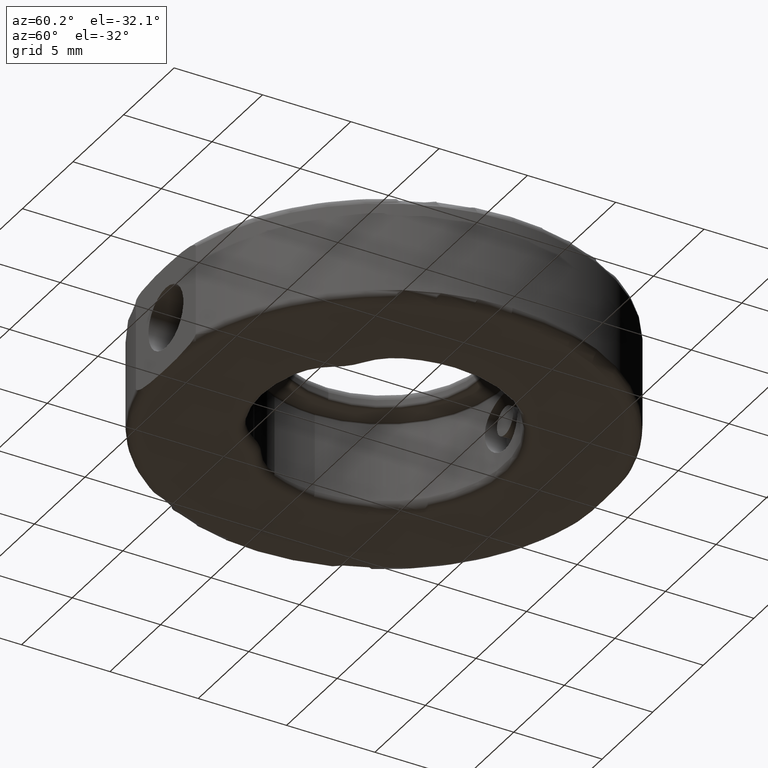
[diagram: clean part render]
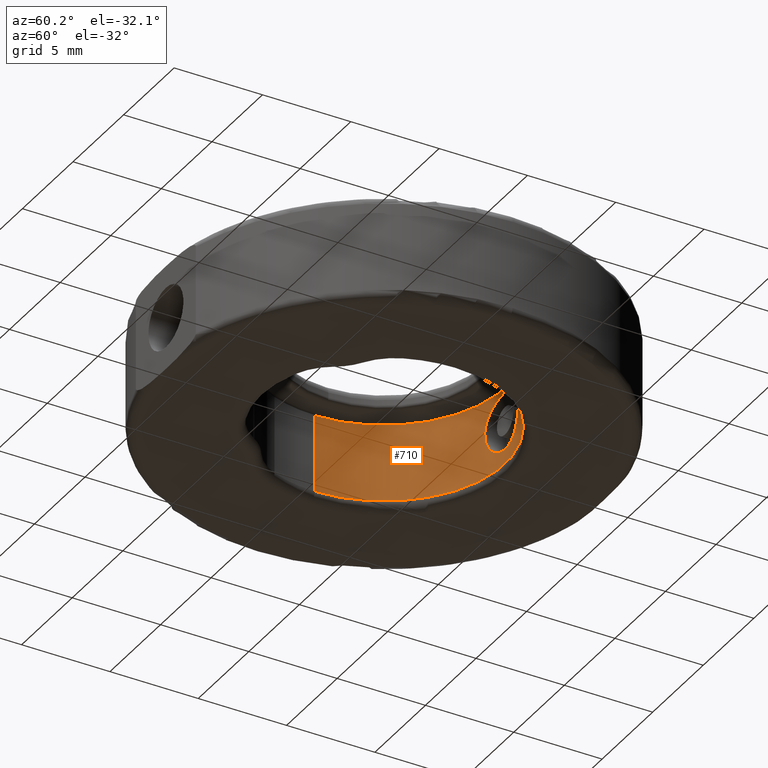
[diagram: same view with one face highlighted and labeled with its STEP entity id]
A machine part, auxiliary view. The second image highlights one B-rep face of the part: STEP entity #710.
In plain terms, the highlighted cylindrical surface (partial cylindrical patch) has radius 6.85 mm, axis along (0, 0, -1).
Its self-contained STEP definition (entity closure, byte-faithful):
#19 = CARTESIAN_POINT ( 'NONE',  ( 6.719217618061335900, 1.275128223901953700, 1.899999999999997700 ) ) ;
#30 = CARTESIAN_POINT ( 'NONE',  ( -1.780692854094324300, 7.923458498666678700, 0.2168156272716826300 ) ) ;
#37 = CARTESIAN_POINT ( 'NONE',  ( -0.6642640029042814500, 8.105058576943044100, 1.565114838639644700 ) ) ;
#46 = CARTESIAN_POINT ( 'NONE',  ( -0.3482485759951011700, 8.122501187562210800, -1.639189690561572200 ) ) ;
#105 = CARTESIAN_POINT ( 'NONE',  ( -0.1307823819386641500, 1.275128223901953000, 1.899999999999997700 ) ) ;
#148 = CARTESIAN_POINT ( 'NONE',  ( -0.1307823819386639600, 8.125128223901953100, -1.649999999999994400 ) ) ;
#177 = DIRECTION ( 'NONE',  ( 1.000000000000000000, 0.0000000000000000000, 0.0000000000000000000 ) ) ;
#195 = EDGE_LOOP ( 'NONE', ( #1958, #2221 ) ) ;
#198 = CARTESIAN_POINT ( 'NONE',  ( -0.8639172233832684800, 8.086520487717045600, 1.482126985888219600 ) ) ;
#209 = CARTESIAN_POINT ( 'NONE',  ( 1.300176239652689500, 7.974274695459972600, -0.8284685667323760100 ) ) ;
#215 = CARTESIAN_POINT ( 'NONE',  ( -1.450272680572304100, 7.998635503419884600, -1.014021106373245600 ) ) ;
#218 = CARTESIAN_POINT ( 'NONE',  ( 1.466540893084672400, 7.936323862542264100, 0.4274556187418180300 ) ) ;
#224 = CARTESIAN_POINT ( 'NONE',  ( -1.137900766765117800, 8.051286043661143300, -1.311386853988991200 ) ) ;
#225 = VERTEX_POINT ( 'NONE', #875 ) ;
#227 = CARTESIAN_POINT ( 'NONE',  ( 0.08651430868236031900, 8.122508546657456900, 1.639220707423793900 ) ) ;
#245 = VERTEX_POINT ( 'NONE', #148 ) ;
#258 = VECTOR ( 'NONE', #1351, 1000.000000000000000 ) ;
#263 = CARTESIAN_POINT ( 'NONE',  ( -0.1307823819386641500, 8.125128223901953100, 1.649999999999992100 ) ) ;
#376 = CARTESIAN_POINT ( 'NONE',  ( -0.9594995347416583900, 8.075409844540114800, -1.430821722829468000 ) ) ;
#379 = CARTESIAN_POINT ( 'NONE',  ( 1.434556746270073900, 7.944011732359609100, 0.5327520053468096700 ) ) ;
#386 = CARTESIAN_POINT ( 'NONE',  ( -1.736970852478477000, 7.934692898172254000, 0.4345169366471000000 ) ) ;
#389 = CARTESIAN_POINT ( 'NONE',  ( 0.4042525322406190800, 8.104928904327323400, 1.564544976635929000 ) ) ;
#406 = CYLINDRICAL_SURFACE ( 'NONE', #1022, 6.850000000000000500 ) ;
#494 = FACE_BOUND ( 'NONE', #195, .T. ) ;
#513 = CARTESIAN_POINT ( 'NONE',  ( -0.1307823819386641500, 1.275128223901953000, -2.500000000000002700 ) ) ;
#561 = CARTESIAN_POINT ( 'NONE',  ( 1.180886698383069900, 7.998648897464490500, -1.006740764297424700 ) ) ;
#565 = CARTESIAN_POINT ( 'NONE',  ( -0.1307823819386641500, 8.125128223901953100, 1.649999999999992100 ) ) ;
#570 = CARTESIAN_POINT ( 'NONE',  ( 1.519255579808591800, 7.923426857863196600, 0.1082731544470719700 ) ) ;
#575 = CARTESIAN_POINT ( 'NONE',  ( -1.727659911210033500, 7.936431145975434200, -0.4291394288536624600 ) ) ;
#579 = CARTESIAN_POINT ( 'NONE',  ( -0.1307823819386639600, 8.125128223901953100, -1.649999999999994400 ) ) ;
#599 = CIRCLE ( 'NONE', #2346, 6.850000000000000500 ) ;
#619 = ORIENTED_EDGE ( 'NONE', *, *, #1142, .T. ) ;
#629 = CARTESIAN_POINT ( 'NONE',  ( -6.980782381938664300, 1.275128223901953000, -2.500000000000002700 ) ) ;
#633 = CIRCLE ( 'NONE', #1729, 6.850000000000000500 ) ;
#710 = ADVANCED_FACE ( 'NONE', ( #787, #494 ), #406, .F. ) ;
#743 = ORIENTED_EDGE ( 'NONE', *, *, #1878, .F. ) ;
#745 = CARTESIAN_POINT ( 'NONE',  ( 0.3028572000758655800, 8.114300780439027200, -1.606468063380612500 ) ) ;
#763 = CARTESIAN_POINT ( 'NONE',  ( 1.310680403859236100, 7.972281378778936800, 0.8313423958689858400 ) ) ;
#773 = CARTESIAN_POINT ( 'NONE',  ( 0.8765576780155588400, 8.051258162119536300, -1.311253189869128900 ) ) ;
#787 = FACE_OUTER_BOUND ( 'NONE', #824, .T. ) ;
#824 = EDGE_LOOP ( 'NONE', ( #743, #1174, #1084, #619 ) ) ;
#875 = CARTESIAN_POINT ( 'NONE',  ( 6.719217618061335900, 1.275128223901953700, -2.500000000000002700 ) ) ;
#927 = DIRECTION ( 'NONE',  ( 1.000000000000000000, 0.0000000000000000000, 0.0000000000000000000 ) ) ;
#952 = CARTESIAN_POINT ( 'NONE',  ( -1.572172994108417700, 7.972294502025321500, 0.8312878408091302100 ) ) ;
#958 = CARTESIAN_POINT ( 'NONE',  ( -0.2402352803849097900, 8.125128223901954900, 1.649999999999991900 ) ) ;
#966 = CARTESIAN_POINT ( 'NONE',  ( -1.222067880094366300, 8.038079541526100200, 1.242211108203061400 ) ) ;
#980 = DIRECTION ( 'NONE',  ( -1.000000000000000000, 0.0000000000000000000, 0.0000000000000000000 ) ) ;
#1022 = AXIS2_PLACEMENT_3D ( 'NONE', #1287, #1115, #980 ) ;
#1084 = ORIENTED_EDGE ( 'NONE', *, *, #2145, .T. ) ;
#1099 = DIRECTION ( 'NONE',  ( 0.0000000000000000000, 0.0000000000000000000, -1.000000000000000000 ) ) ;
#1115 = DIRECTION ( 'NONE',  ( 0.0000000000000000000, 0.0000000000000000000, -1.000000000000000000 ) ) ;
#1132 = CARTESIAN_POINT ( 'NONE',  ( -0.2387023365415995300, 8.125128223901956700, -1.649999999999994800 ) ) ;
#1135 = CARTESIAN_POINT ( 'NONE',  ( -0.02135880998334083500, 8.125128223901953100, 1.649999999999991700 ) ) ;
#1142 = EDGE_CURVE ( 'NONE', #2316, #225, #633, .T. ) ;
#1143 = CARTESIAN_POINT ( 'NONE',  ( 1.508626695495148800, 7.926091075850505900, 0.2156335496921648900 ) ) ;
#1148 = CARTESIAN_POINT ( 'NONE',  ( -0.5592342603691566900, 8.112535046256473600, 1.597044717059997500 ) ) ;
#1174 = ORIENTED_EDGE ( 'NONE', *, *, #2238, .T. ) ;
#1175 = CARTESIAN_POINT ( 'NONE',  ( 6.719217618061335900, 1.275128223901953700, 1.999999999999997800 ) ) ;
#1208 = B_SPLINE_CURVE_WITH_KNOTS ( 'NONE', 3,
 ( #579, #1882, #745, #1310, #2247, #773, #2242, #1294, #561, #209, #1322, #1877, #1675, #570, #1143, #218, #379, #763, #1506, #2060, #1858, #389, #1682, #227, #1135, #2068 ),
 .UNSPECIFIED., .F., .F.,
 ( 4, 2, 2, 2, 2, 2, 2, 2, 2, 2, 2, 2, 4 ),
 ( 0.005177749343865259800, 0.005824794597962986700, 0.006148317225011849800, 0.006471839852060713700, 0.006795362479109577600, 0.007118885106158440700, 0.007765930360256167700, 0.008089452987305029800, 0.008412975614353893800, 0.009060020868451621600, 0.009707066122549347700, 0.01003058874959821000, 0.01035411137664707400 ),
 .UNSPECIFIED. ) ;
#1229 = EDGE_CURVE ( 'NONE', #245, #2287, #1208, .T. ) ;
#1237 = DIRECTION ( 'NONE',  ( -0.0000000000000000000, 0.0000000000000000000, 1.000000000000000000 ) ) ;
#1283 = VERTEX_POINT ( 'NONE', #19 ) ;
#1287 = CARTESIAN_POINT ( 'NONE',  ( -0.1307823819386641500, 1.275128223901953000, 1.999999999999997800 ) ) ;
#1294 = CARTESIAN_POINT ( 'NONE',  ( 1.111522529611789900, 8.011977733653825600, -1.091214134151306400 ) ) ;
#1297 = LINE ( 'NONE', #1175, #258 ) ;
#1306 = CARTESIAN_POINT ( 'NONE',  ( -1.137613366374573800, 8.051333227250182700, 1.311637822400331600 ) ) ;
#1310 = CARTESIAN_POINT ( 'NONE',  ( 0.6009203281985595600, 8.086667497830625000, -1.482795291136238500 ) ) ;
#1322 = CARTESIAN_POINT ( 'NONE',  ( 1.351007482791412300, 7.963074771310169300, -0.7338915584662558700 ) ) ;
#1325 = CARTESIAN_POINT ( 'NONE',  ( -1.220788555581608000, 8.038294105196010600, -1.243416625475926000 ) ) ;
#1351 = DIRECTION ( 'NONE',  ( 0.0000000000000000000, 0.0000000000000000000, -1.000000000000000000 ) ) ;
#1420 = CARTESIAN_POINT ( 'NONE',  ( -6.980782381938664300, 1.275128223901953000, 1.999999999999997800 ) ) ;
#1443 = DIRECTION ( 'NONE',  ( 0.0000000000000000000, -0.0000000000000000000, -1.000000000000000000 ) ) ;
#1497 = CARTESIAN_POINT ( 'NONE',  ( -1.571712950573246300, 7.972402561131821700, -0.8326065042925935300 ) ) ;
#1503 = CARTESIAN_POINT ( 'NONE',  ( -1.780826934196240400, 7.923425222208034100, -0.1073842220934327400 ) ) ;
#1506 = CARTESIAN_POINT ( 'NONE',  ( 1.187991512755111100, 7.998738184359371700, 1.014499753722950500 ) ) ;
#1517 = CARTESIAN_POINT ( 'NONE',  ( -0.8628296263159647200, 8.086634474379630800, -1.482646709296221000 ) ) ;
#1560 = VECTOR ( 'NONE', #1099, 1000.000000000000000 ) ;
#1675 = CARTESIAN_POINT ( 'NONE',  ( 1.519141391934862600, 7.923455197401299400, -0.2182772208244649600 ) ) ;
#1680 = CARTESIAN_POINT ( 'NONE',  ( -0.1307823819386639600, 8.125128223901953100, -1.649999999999994400 ) ) ;
#1682 = CARTESIAN_POINT ( 'NONE',  ( 0.2992097025802116800, 8.112448016296140100, 1.596674414729855100 ) ) ;
#1729 = AXIS2_PLACEMENT_3D ( 'NONE', #513, #1443, #177 ) ;
#1766 = LINE ( 'NONE', #1420, #1560 ) ;
#1811 = EDGE_CURVE ( 'NONE', #2287, #245, #2319, .T. ) ;
#1858 = CARTESIAN_POINT ( 'NONE',  ( 0.7020615017241665900, 8.077233033471136600, 1.440529221736132300 ) ) ;
#1864 = CARTESIAN_POINT ( 'NONE',  ( -1.769991469733869200, 7.926140780618874600, -0.2171912967369802300 ) ) ;
#1872 = CARTESIAN_POINT ( 'NONE',  ( -0.6635786250794496500, 8.105109097344566700, -1.565331465179940200 ) ) ;
#1877 = CARTESIAN_POINT ( 'NONE',  ( 1.476136293435347200, 7.934530094007021400, -0.4330178540816391200 ) ) ;
#1878 = EDGE_CURVE ( 'NONE', #1283, #225, #1297, .T. ) ;
#1882 = CARTESIAN_POINT ( 'NONE',  ( 0.08499969575038197900, 8.125128223901953100, -1.649999999999993900 ) ) ;
#1887 = CARTESIAN_POINT ( 'NONE',  ( -1.696356205484053100, 7.943958309903943700, -0.5321956657879067800 ) ) ;
#1898 = CARTESIAN_POINT ( 'NONE',  ( -1.449413209857229400, 7.998770911598789700, 1.014732793879718600 ) ) ;
#1924 = VERTEX_POINT ( 'NONE', #2115 ) ;
#1958 = ORIENTED_EDGE ( 'NONE', *, *, #1811, .F. ) ;
#2060 = CARTESIAN_POINT ( 'NONE',  ( 0.8852694590987084700, 8.051095619190434100, 1.317578457608608500 ) ) ;
#2068 = CARTESIAN_POINT ( 'NONE',  ( -0.1307823819386641500, 8.125128223901953100, 1.649999999999992100 ) ) ;
#2083 = CARTESIAN_POINT ( 'NONE',  ( -0.3477802495964896200, 8.122508379256455400, 1.639217729849156100 ) ) ;
#2115 = CARTESIAN_POINT ( 'NONE',  ( -6.980782381938664300, 1.275128223901953000, 1.899999999999997700 ) ) ;
#2145 = EDGE_CURVE ( 'NONE', #1924, #2316, #1766, .T. ) ;
#2221 = ORIENTED_EDGE ( 'NONE', *, *, #1229, .F. ) ;
#2237 = CARTESIAN_POINT ( 'NONE',  ( -0.9585435612128707600, 8.075530734688230800, 1.431402752008615700 ) ) ;
#2238 = EDGE_CURVE ( 'NONE', #1283, #1924, #599, .T. ) ;
#2242 = CARTESIAN_POINT ( 'NONE',  ( 0.9593387232941809100, 8.038270894749020500, -1.243264153653553800 ) ) ;
#2247 = CARTESIAN_POINT ( 'NONE',  ( 0.6974011783433764500, 8.075479900578368800, -1.431164181639935900 ) ) ;
#2250 = CARTESIAN_POINT ( 'NONE',  ( -0.5606896202275598600, 8.112451370827924900, -1.596688496128016800 ) ) ;
#2287 = VERTEX_POINT ( 'NONE', #263 ) ;
#2316 = VERTEX_POINT ( 'NONE', #629 ) ;
#2319 = B_SPLINE_CURVE_WITH_KNOTS ( 'NONE', 3,
 ( #565, #958, #2083, #1148, #37, #198, #2237, #1306, #966, #1898, #952, #386, #30, #1503, #1864, #575, #1887, #1497, #215, #1325, #224, #376, #1517, #1872, #2250, #46, #1132, #1680 ),
 .UNSPECIFIED., .F., .F.,
 ( 4, 2, 2, 2, 2, 2, 2, 2, 2, 2, 2, 2, 2, 4 ),
 ( 0.0000000000000000000, 0.0003236093339915789500, 0.0006472186679831579100, 0.0009708280019747367500, 0.001294437335966316000, 0.001941656003949473300, 0.002588874671932630300, 0.002912484005924209400, 0.003236093339915788400, 0.003883312007898944800, 0.004206921341890524300, 0.004530530675882102500, 0.004854140009873682400, 0.005177749343865259800 ),
 .UNSPECIFIED. ) ;
#2346 = AXIS2_PLACEMENT_3D ( 'NONE', #105, #1237, #927 ) ;